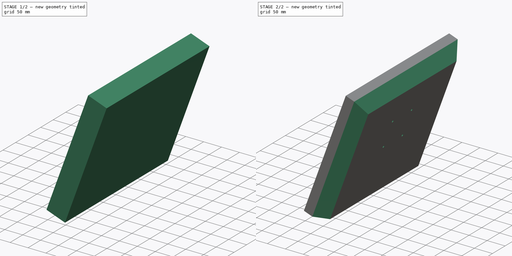
[diagram: build sequence overview — one tinted view per stage of 2, left to right]
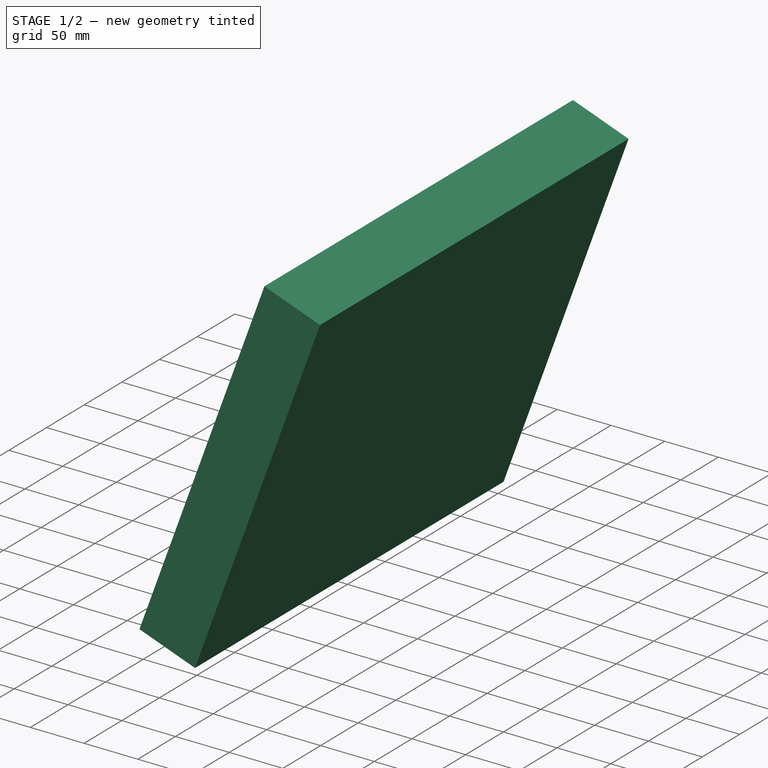
[diagram: stage 1 of 2 — iso view after this stage's code; geometry added in this stage tinted green]
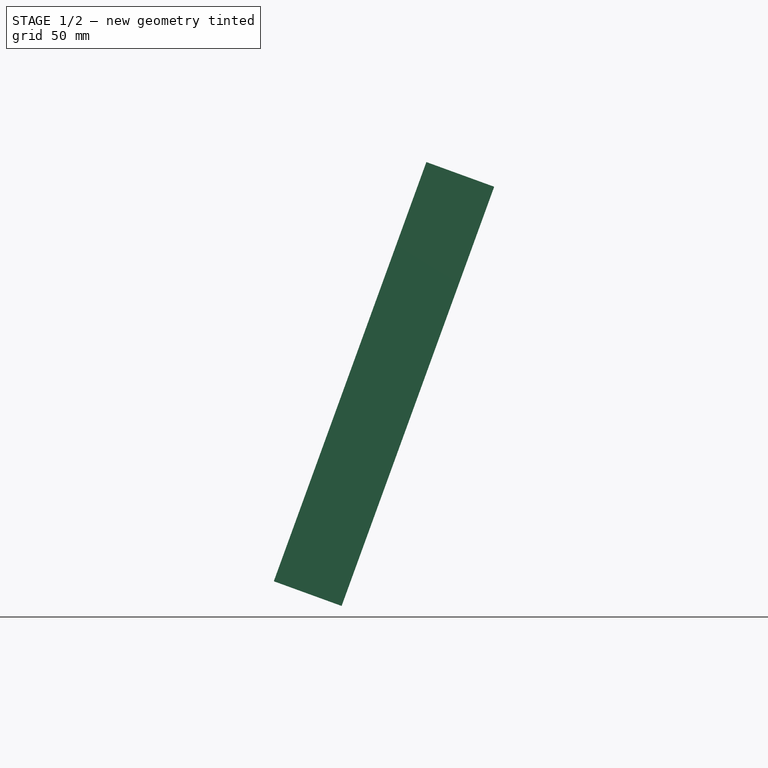
[diagram: stage 1 of 2 — front view after this stage's code; geometry added in this stage tinted green]
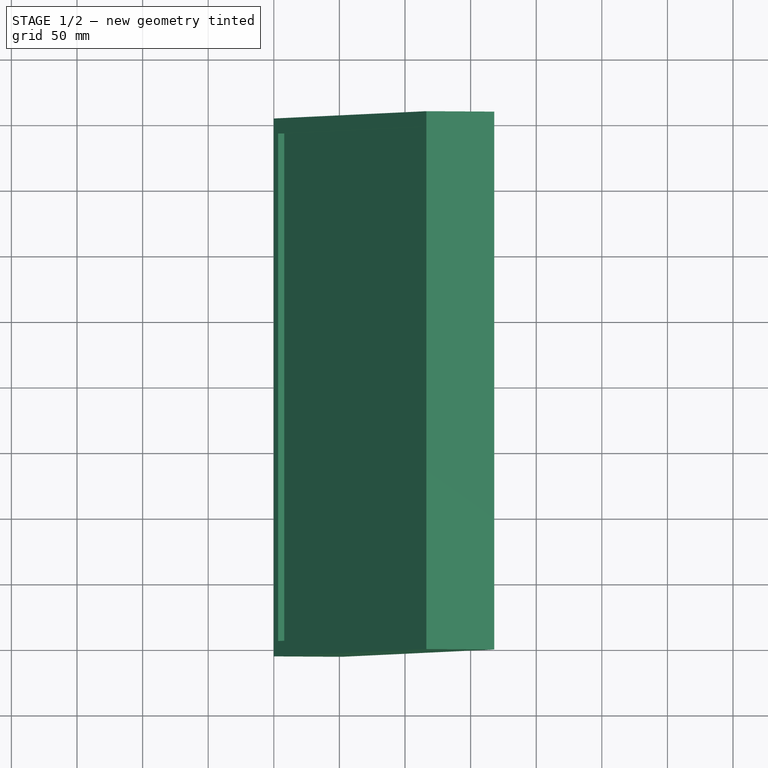
[diagram: stage 1 of 2 — top view after this stage's code; geometry added in this stage tinted green]
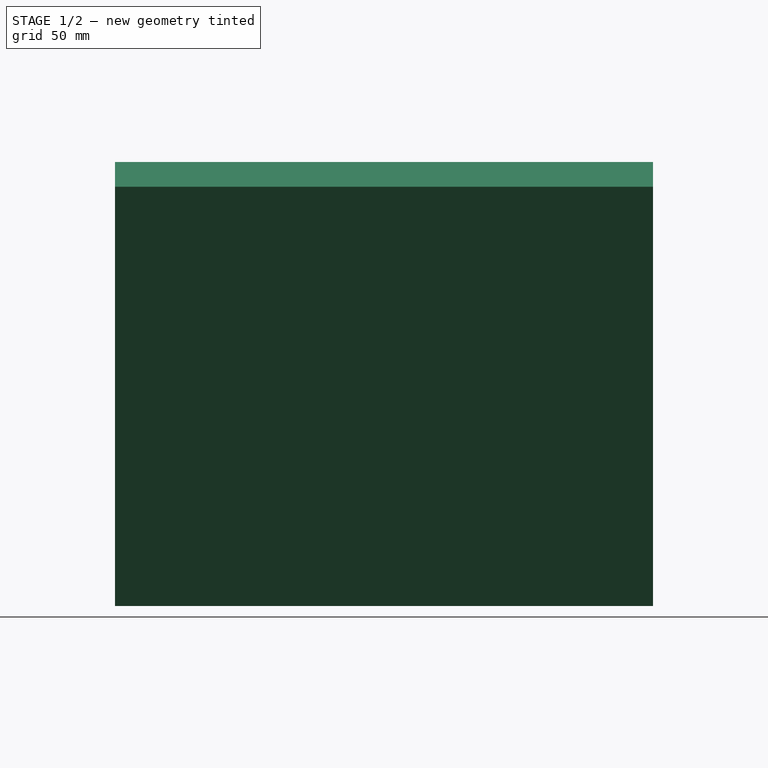
[diagram: stage 1 of 2 — right view after this stage's code; geometry added in this stage tinted green]
FCSTD DOCUMENT  (FreeCAD 0.18R14555 (Git shallow))
Label: 1106_Monitor_DELL_H340_W410_D55
License: All rights reserved
LicenseURL: http://en.wikipedia.org/wiki/All_rights_reserved
objects: Sketcher::SketchObject×3, PartDesign::Pad×1, PartDesign::Pocket×1, Spreadsheet::Sheet×1, PartDesign::Hole×1, PartDesign::Chamfer×1, PartDesign::Body×1, App::Part×1
note: 11 computed .brp shape members not serialized (recipe doc carries the construction recipe); baked Part::Feature solids carry a one-line shape summary decoded from their .brp

FEATURE [Sketcher::SketchObject] Sketch002
  MapMode = 5
  Placement = pos=(0,0,0) rot=(0,0.707107,0.707107;3.14159rad)
  Support = -> [XZ_Plane001]
  expr: Constraints[8] = Monitor.H_monitor
  expr: Constraints[7] = Monitor.D_monitor
  sketch-geometry (4):
    g0: LineSegment StartX=-116.287 StartY=319.495 StartZ=0 EndX=-1.42e-14 EndY=0 EndZ=0
    g1: LineSegment StartX=-1.42e-14 StartY=0 StartZ=0 EndX=-51.6831 EndY=-18.8111 EndZ=0
    g2: LineSegment StartX=-51.6831 StartY=-18.8111 StartZ=0 EndX=-167.97 EndY=300.684 EndZ=0
    g3: LineSegment StartX=-167.97 StartY=300.684 StartZ=0 EndX=-116.287 EndY=319.495 EndZ=0
  constraints (11):
    c: Coincident(g2,g1)
    c: Coincident(g3,g2)
    c: Coincident(g3,g0)
    c: Perpendicular(g1,g0)
    c: Perpendicular(g2,g1)
    c: Perpendicular(g2,g3)
    c: Coincident(g1,g0)
    c: Distance(g1) = 55
    c: Distance(g2) = 340
    c: Coincident(g0,g-1)
    c: Angle(g-2,g0) = 0.349066
FEATURE [PartDesign::Pad] Pad002
  Length = 205
  Length2 = 205
  Placement = pos=(0,0,0) rot=(1,0,0;1.5708rad)
  Profile = -> Sketch002
  Type = 4
  expr: Length2 = Monitor.W_monitor / 2
  expr: Length = Monitor.W_monitor / 2
FEATURE [Sketcher::SketchObject] Sketch
  ExternalGeometry = -> [Pad002]
  MapMode = 5
  Placement = pos=(0,0,0) rot=(-0.573576,0,0.819152;3.14159rad)
  Support = -> [Pad002]
  sketch-geometry (8):
    g0: LineSegment [constr] StartX=-170 StartY=-1.6e-14 StartZ=0 EndX=-9.57504 EndY=-193.454 EndZ=0
    g1: LineSegment StartX=-330.425 StartY=193.454 StartZ=0 EndX=-9.57504 EndY=193.454 EndZ=0
    g2: LineSegment StartX=-9.57504 StartY=193.454 StartZ=0 EndX=-9.57504 EndY=-193.454 EndZ=0
    g3: LineSegment StartX=-9.57504 StartY=-193.454 StartZ=0 EndX=-330.425 EndY=-193.454 EndZ=0
    g4: LineSegment StartX=-330.425 StartY=-193.454 StartZ=0 EndX=-330.425 EndY=193.454 EndZ=0
    g5: LineSegment [constr] StartX=-330.425 StartY=193.454 StartZ=0 EndX=-170 EndY=-2.84e-14 EndZ=0
    g6: LineSegment [constr] StartX=-330.425 StartY=193.454 StartZ=0 EndX=-340 EndY=205 EndZ=0
    g7: LineSegment [constr] StartX=-9.57504 StartY=-193.454 StartZ=0 EndX=0 EndY=-205 EndZ=0
  constraints (21):
    c: Coincident(g1,g2)
    c: Coincident(g2,g3)
    c: Coincident(g3,g4)
    c: Horizontal(g1)
    c: Horizontal(g3)
    c: Vertical(g2)
    c: Vertical(g4)
    c: Coincident(g2,g0)
    c: Coincident(g4,g1)
    c: Coincident(g5,g1)
    c: Coincident(g5,g0)
    c: Equal(g0,g5)
    c: Parallel(g5,g0)
    c: Coincident(g6,g1)
    c: Coincident(g6,g-6)
    c: Coincident(g7,g2)
    c: Coincident(g7,g-5)
    c: Parallel(g5,g6)
    c: Parallel(g7,g0)
    c: Equal(g6,g7)
    c: Distance(g6) = 15
FEATURE [PartDesign::Pocket] Pocket
  BaseFeature = -> Pad002
  Length = 5
  Length2 = 100
  Placement = pos=(0,0,0) rot=(1,0,0;1.5708rad)
  Profile = -> Sketch
  Type = 0
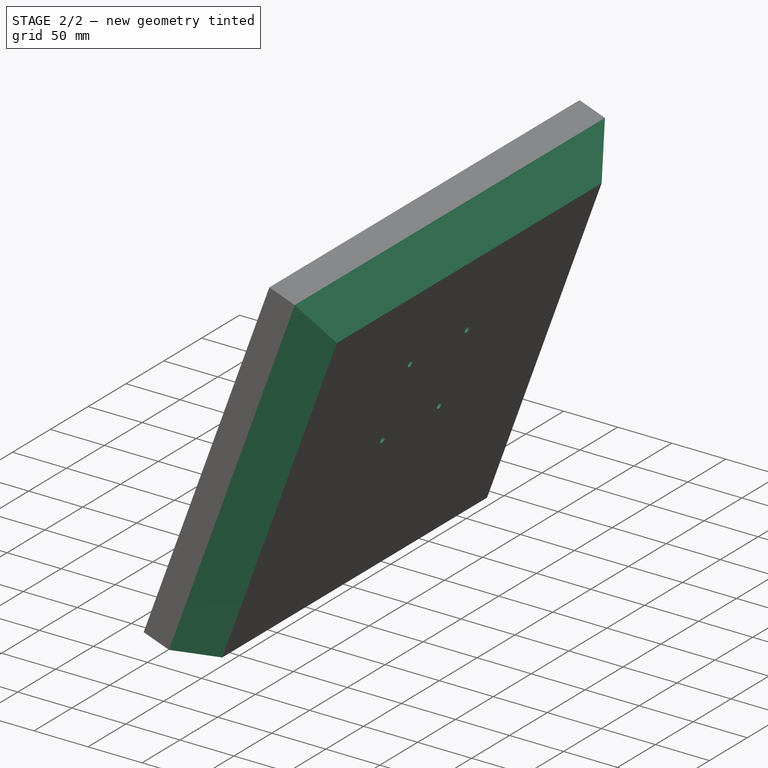
[diagram: stage 2 of 2 — iso view after this stage's code; geometry added in this stage tinted green]
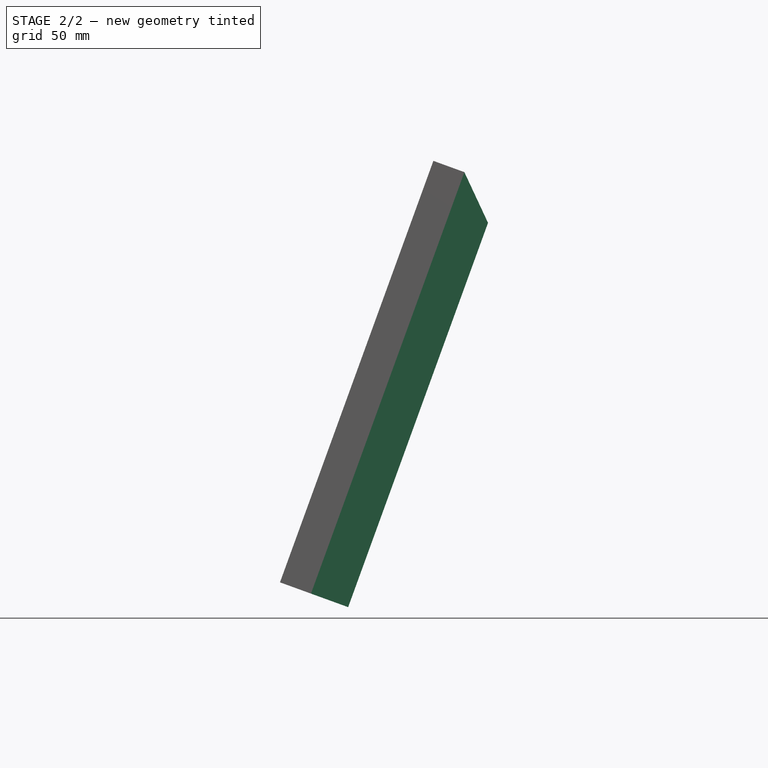
[diagram: stage 2 of 2 — front view after this stage's code; geometry added in this stage tinted green]
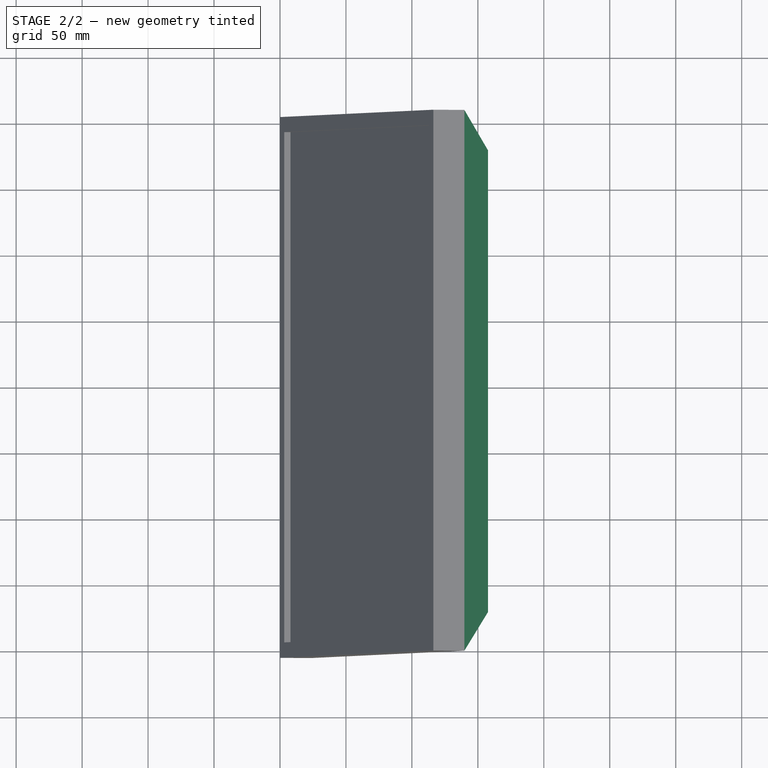
[diagram: stage 2 of 2 — top view after this stage's code; geometry added in this stage tinted green]
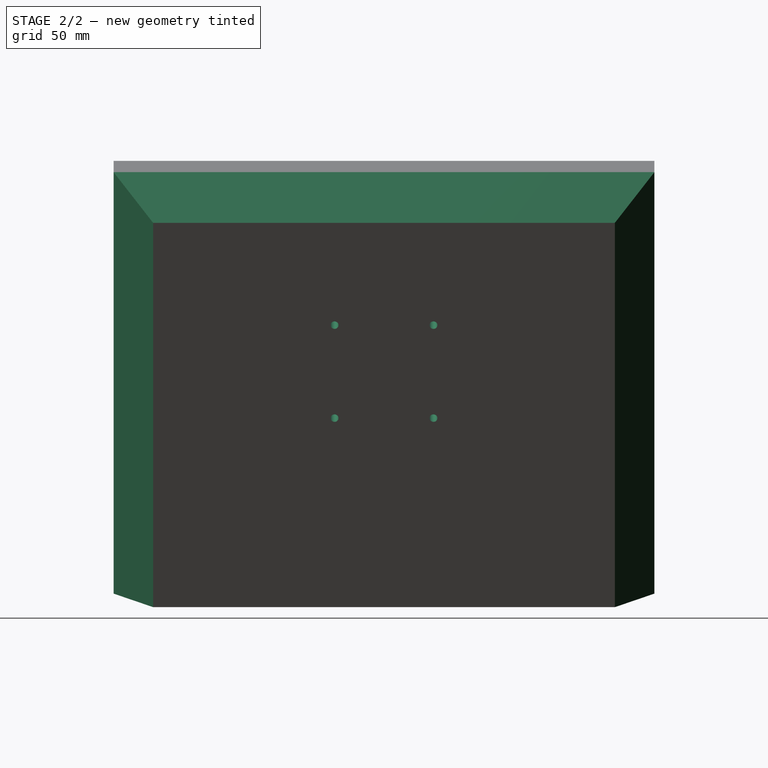
[diagram: stage 2 of 2 — right view after this stage's code; geometry added in this stage tinted green]
FEATURE [Spreadsheet::Sheet] Spreadsheet  label="Monitor"
  cells = B3=Monitor dimensions; B4=Width; C4(W_monitor)=410; D4=W_monitor; B5=Height; C5(H_monitor)=340; D5=H_monitor; B6=Depth; C6(D_monitor)=55; D6=D_monitor; B8=Monitor Mounting; B9=Width; C9(W_mount)=75; D9=W_mount; B10=Height; C10(H_mount)=75; D10=H_mount; B11=HeightMounting; C11(H0_mount)=100; D11=H0_mount; B12=ScrewSize; C12(D_screw)=8; D12=D_screw
FEATURE [Sketcher::SketchObject] Sketch003
  ExternalGeometry = -> [Pocket]
  MapMode = 5
  Placement = pos=(51.6831,1.9375e-12,-18.8111) rot=(0.819152,0,0.573576;3.14159rad)
  Support = -> [Pocket]
  sketch-geometry (12):
    g0: LineSegment [constr] StartX=340 StartY=205 StartZ=0 EndX=340 EndY=-2.84e-14 EndZ=0
    g1: LineSegment [constr] StartX=340 StartY=-2.84e-14 StartZ=0 EndX=340 EndY=-205 EndZ=0
    g2: LineSegment [constr] StartX=340 StartY=-2.84e-14 StartZ=0 EndX=190 EndY=-3.93e-14 EndZ=0
    g3: LineSegment [constr] StartX=190 StartY=-3.93e-14 StartZ=0 EndX=227.5 EndY=37.5 EndZ=0
    g4: LineSegment [constr] StartX=190 StartY=-3.93e-14 StartZ=0 EndX=152.5 EndY=37.5 EndZ=0
    g5: LineSegment [constr] StartX=190 StartY=-3.93e-14 StartZ=0 EndX=152.5 EndY=-37.5 EndZ=0
    g6: LineSegment [constr] StartX=190 StartY=-3.93e-14 StartZ=0 EndX=227.5 EndY=-37.5 EndZ=0
    g7: Circle CenterX=152.5 CenterY=37.5 CenterZ=0 NormalX=0 NormalY=0 NormalZ=1 AngleXU=0 Radius=2
    g8: Circle CenterX=152.5 CenterY=-37.5 CenterZ=0 NormalX=0 NormalY=0 NormalZ=1 AngleXU=0 Radius=1.28365
    g9: Circle CenterX=227.5 CenterY=-37.5 CenterZ=0 NormalX=0 NormalY=0 NormalZ=1 AngleXU=0 Radius=2
    g10: Circle CenterX=227.5 CenterY=37.5 CenterZ=0 NormalX=0 NormalY=0 NormalZ=1 AngleXU=0 Radius=2
    g11: Circle CenterX=152.5 CenterY=-37.5 CenterZ=0 NormalX=0 NormalY=0 NormalZ=1 AngleXU=0 Radius=2
  constraints (29):
    c: Coincident(g-3,g1)
    c: Equal(g1,g0)
    c: Coincident(g0,g-3)
    c: Coincident(g1,g0)
    c: Parallel(g1,g0)
    c: Coincident(g5,g2)
    c: Coincident(g3,g4)
    c: Coincident(g6,g3)
    c: Coincident(g3,g2)
    c: Coincident(g2,g0)
    c: Coincident(g7,g4)
    c: Equal(g7,g10)
    c: Equal(g10,g9)
    c: Equal(g9,g11)
    c: Coincident(g9,g6)
    c: Coincident(g11,g8)
    c: Coincident(g8,g5)
    c: Coincident(g10,g3)
    c: Perpendicular(g1,g2)
    c: Equal(g6,g3)
    c: Equal(g5,g4)
    c: Equal(g4,g3)
    c: Angle(g2,g3) = 0.785398
    c: Angle(g3,g4) = 1.5708
    c: Parallel(g5,g3)
    c: Parallel(g6,g4)
    c: DistanceX(g7,g10) = 75
    c: DistanceX(g2,g2) = 150
    c: Diameter(g9) = 4
FEATURE [PartDesign::Hole] Hole
  BaseFeature = -> Pocket
  Depth = 25
  DepthType = 0
  Diameter = 6
  DrillPoint = 1
  DrillPointAngle = 118
  HoleCutCountersinkAngle = 90
  HoleCutDepth = 0
  HoleCutDiameter = 0
  HoleCutType = 0
  ModelActualThread = false
  Placement = pos=(0,0,0) rot=(1,0,0;1.5708rad)
  Profile = -> Sketch003
  Tapered = false
  TaperedAngle = 90
  ThreadAngle = 0
  ThreadClass = 0
  ThreadCutOffInner = 0
  ThreadCutOffOuter = 0
  ThreadDirection = 0
  ThreadFit = 0
  ThreadPitch = 0
  ThreadSize = 0
  ThreadType = 0
  Threaded = false
FEATURE [PartDesign::Chamfer] Chamfer
  Base = -> Hole [Edge9,Edge13,Edge15]
  BaseFeature = -> Hole
  Placement = pos=(0,0,0) rot=(1,0,0;1.5708rad)
  Size = 30
FEATURE [PartDesign::Body] Pad002Body
  Group = -> [Sketch002,Pad002,Sketch,Pocket,Sketch003,Hole,Chamfer]
  Origin = -> Origin001
  Tip = -> Chamfer
FEATURE [App::Part] Part
  Group = -> [Pad002Body]
  License = CC BY 3.0
  LicenseURL = http://creativecommons.org/licenses/by/3.0/
  Origin = -> Origin
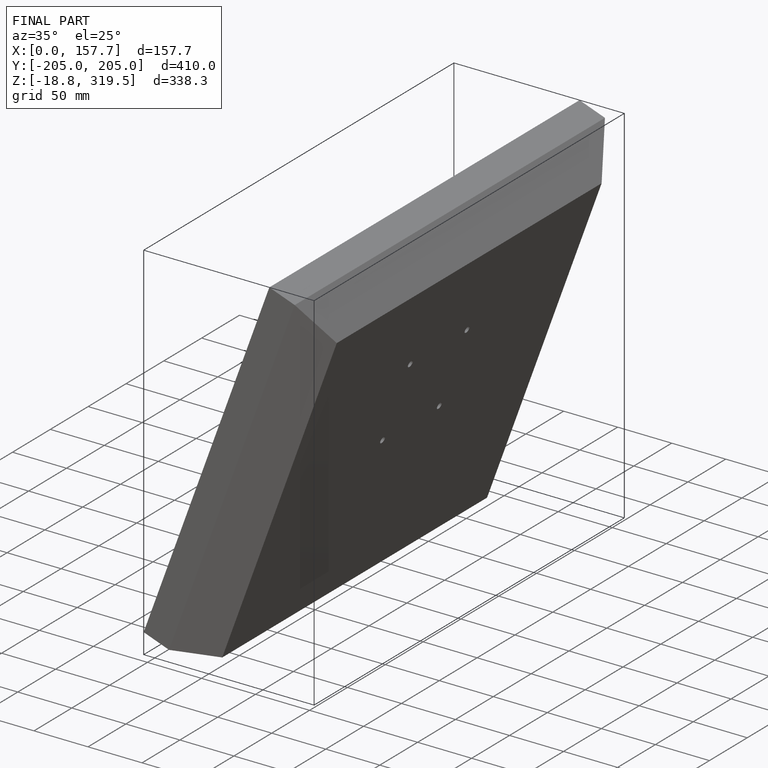
[diagram: finished part — iso view with bounding-box wireframe]
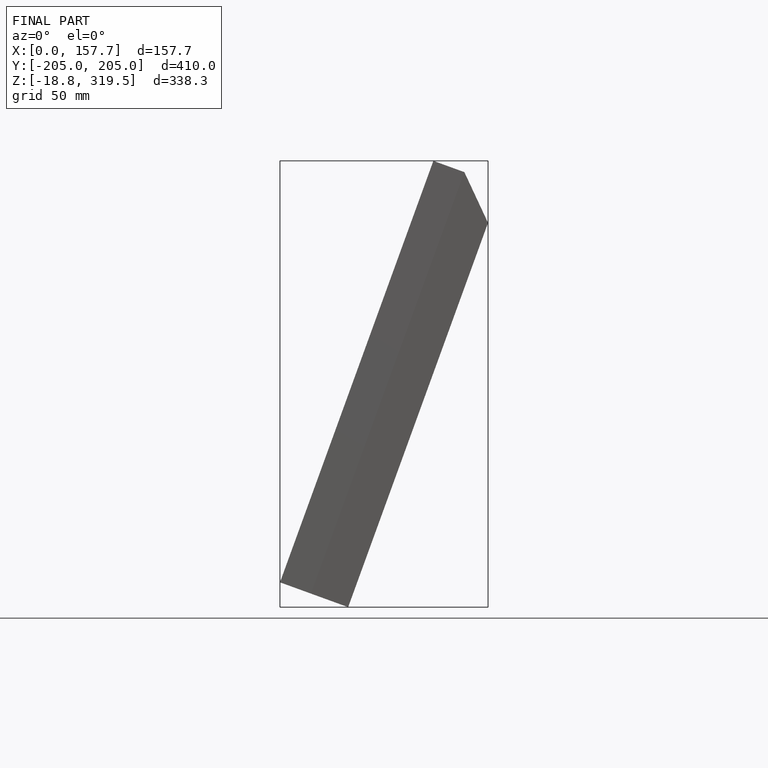
[diagram: finished part — front view with bounding-box wireframe]
